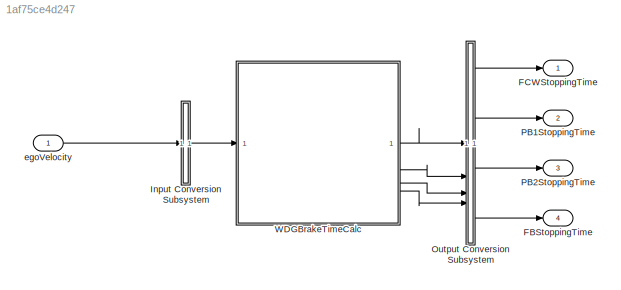
MODEL slx_1af75ce4d247
KIND model
BLOCK [Outport] FBStoppingTime
  Port = 4
BLOCK [Outport] FCWStoppingTime
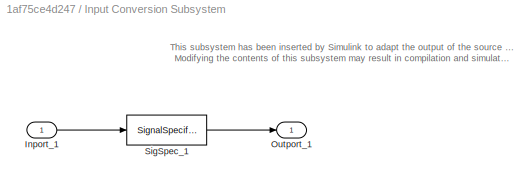
BLOCK [SubSystem] Input Conversion Subsystem
  AttributesFormatString = %<Description>
  Description = Signal spec.\nand routing
  Permissions = ReadOnly
  PermitHierarchicalResolution = ExplicitOnly
  Tag = __SLT_ICS__
  UserDataPersistent = on
BLOCK [Inport] Input Conversion Subsystem/Inport_1
BLOCK [Outport] Input Conversion Subsystem/Outport_1
BLOCK [SignalSpecification] Input Conversion Subsystem/SigSpec_1
  Dimensions = [1]
  OutDataTypeStr = double
  SampleTime = 0.1
  SignalType = real
  Unit = m/s
  VarSizeSig = No
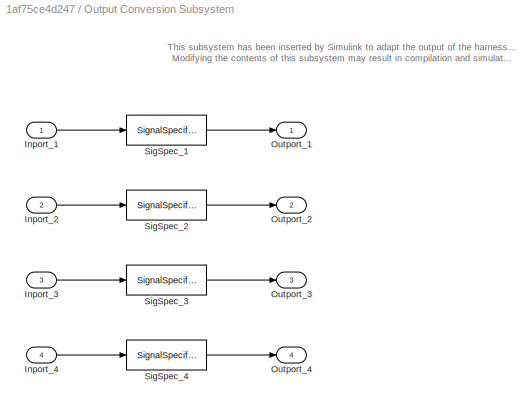
BLOCK [SubSystem] Output Conversion Subsystem
  AttributesFormatString = %<Description>
  Description = Signal spec.\nand routing
  Permissions = ReadOnly
  PermitHierarchicalResolution = ExplicitOnly
  Tag = __SLT_OCS__
  UserDataPersistent = on
BLOCK [Inport] Output Conversion Subsystem/Inport_1
BLOCK [Inport] Output Conversion Subsystem/Inport_2
  Port = 2
BLOCK [Inport] Output Conversion Subsystem/Inport_3
  Port = 3
BLOCK [Inport] Output Conversion Subsystem/Inport_4
  Port = 4
BLOCK [Outport] Output Conversion Subsystem/Outport_1
BLOCK [Outport] Output Conversion Subsystem/Outport_2
  Port = 2
BLOCK [Outport] Output Conversion Subsystem/Outport_3
  Port = 3
BLOCK [Outport] Output Conversion Subsystem/Outport_4
  Port = 4
BLOCK [SignalSpecification] Output Conversion Subsystem/SigSpec_1
  Dimensions = [1]
  OutDataTypeStr = double
  SampleTime = 0.1
  SignalType = real
  Unit = s
  VarSizeSig = No
BLOCK [SignalSpecification] Output Conversion Subsystem/SigSpec_2
  Dimensions = [1]
  OutDataTypeStr = double
  SampleTime = 0.1
  SignalType = real
  Unit = s
  VarSizeSig = No
BLOCK [SignalSpecification] Output Conversion Subsystem/SigSpec_3
  Dimensions = [1]
  OutDataTypeStr = double
  SampleTime = 0.1
  SignalType = real
  Unit = s
  VarSizeSig = No
BLOCK [SignalSpecification] Output Conversion Subsystem/SigSpec_4
  Dimensions = [1]
  OutDataTypeStr = double
  SampleTime = 0.1
  SignalType = real
  Unit = s
  VarSizeSig = No
BLOCK [Outport] PB1StoppingTime
  Port = 2
BLOCK [Outport] PB2StoppingTime
  Port = 3
BLOCK [ModelReference] WDGBrakeTimeCalc
  ModelNameDialog = WDGBrakeTimeCalc
  ModelReferenceVersion = 8.0
BLOCK [Inport] egoVelocity
  OutDataTypeStr = double
  PortDimensions = [1]
  SampleTime = 0.1
  SignalType = real
  VarSizeSig = No
ANNOTATION Input Conversion Subsystem: This subsystem has been inserted by Simulink to adapt the output of the source blocks to the interface required by the harnessed component. Modifying the contents of this subsystem may result in compilation and simulation failure.
ANNOTATION Output Conversion Subsystem: This subsystem has been inserted by Simulink to adapt the output of the harnessed component to the interface required by the sink blocks. Modifying the contents of this subsystem may result in compilation and simulation failure.
LINE Input Conversion Subsystem/Inport_1:1 -> Input Conversion Subsystem/SigSpec_1:1
LINE Input Conversion Subsystem/SigSpec_1:1 -> Input Conversion Subsystem/Outport_1:1
LINE Input Conversion Subsystem:1 -> WDGBrakeTimeCalc:1
LINE Output Conversion Subsystem/Inport_1:1 -> Output Conversion Subsystem/SigSpec_1:1
LINE Output Conversion Subsystem/Inport_2:1 -> Output Conversion Subsystem/SigSpec_2:1
LINE Output Conversion Subsystem/Inport_3:1 -> Output Conversion Subsystem/SigSpec_3:1
LINE Output Conversion Subsystem/Inport_4:1 -> Output Conversion Subsystem/SigSpec_4:1
LINE Output Conversion Subsystem/SigSpec_1:1 -> Output Conversion Subsystem/Outport_1:1
LINE Output Conversion Subsystem/SigSpec_2:1 -> Output Conversion Subsystem/Outport_2:1
LINE Output Conversion Subsystem/SigSpec_3:1 -> Output Conversion Subsystem/Outport_3:1
LINE Output Conversion Subsystem/SigSpec_4:1 -> Output Conversion Subsystem/Outport_4:1
LINE Output Conversion Subsystem:1 -> FCWStoppingTime:1
LINE Output Conversion Subsystem:2 -> PB1StoppingTime:1
LINE Output Conversion Subsystem:3 -> PB2StoppingTime:1
LINE Output Conversion Subsystem:4 -> FBStoppingTime:1
LINE WDGBrakeTimeCalc:1 -> Output Conversion Subsystem:1
LINE WDGBrakeTimeCalc:2 -> Output Conversion Subsystem:2
LINE WDGBrakeTimeCalc:3 -> Output Conversion Subsystem:3
LINE WDGBrakeTimeCalc:4 -> Output Conversion Subsystem:4
LINE egoVelocity:1 -> Input Conversion Subsystem:1
